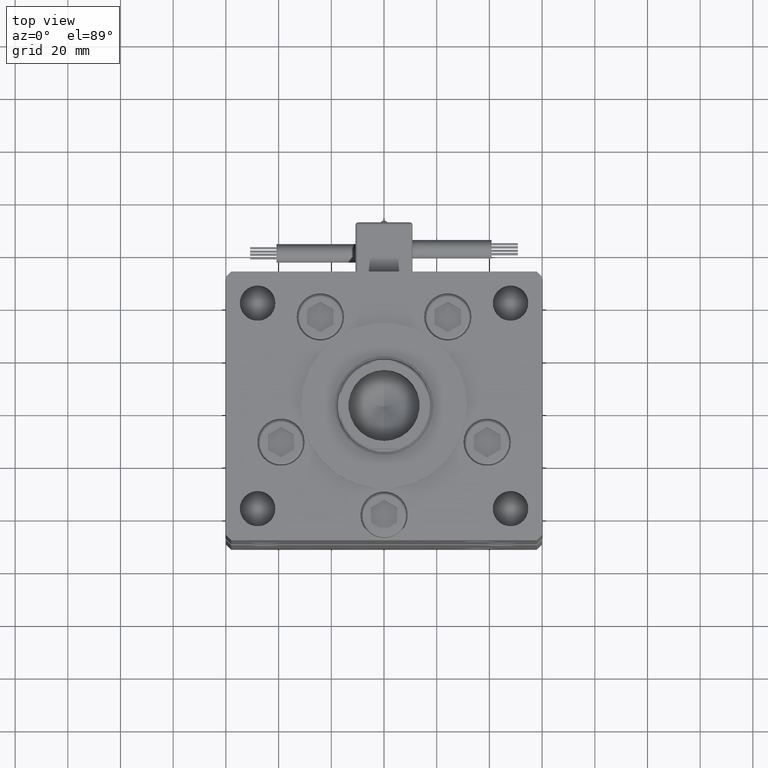
[diagram: clean part render]
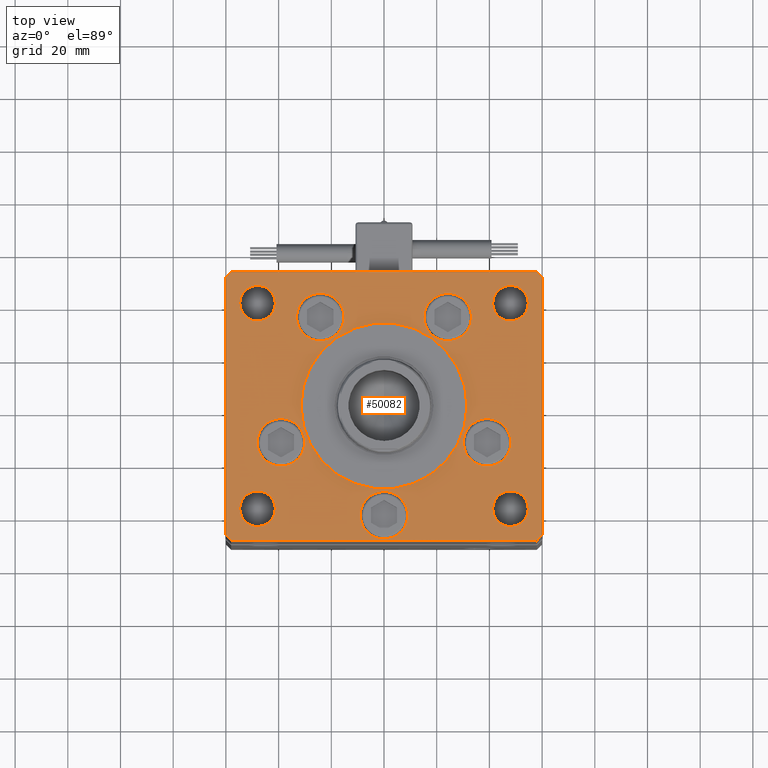
[diagram: same view with one face highlighted and labeled with its STEP entity id]
A machine part, top view. The second image highlights one B-rep face of the part: STEP entity #50082.
In plain terms, the highlighted planar face has unit normal (0, 0, 1).
Its self-contained STEP definition (entity closure, byte-faithful):
#298 = CARTESIAN_POINT ( 'NONE',  ( -48.00000000000000000, -39.00000000000001421, 0.000000000000000000 ) ) ;
#358 = AXIS2_PLACEMENT_3D ( 'NONE', #5290, #22786, #6131 ) ;
#632 = CARTESIAN_POINT ( 'NONE',  ( 15.19288941894913236, 33.71874999999998579, 0.000000000000000000 ) ) ;
#867 = DIRECTION ( 'NONE',  ( -0.7071067811865536790, -0.7071067811865414665, 0.000000000000000000 ) ) ;
#988 = DIRECTION ( 'NONE',  ( 0.000000000000000000, 0.000000000000000000, 1.000000000000000000 ) ) ;
#1074 = DIRECTION ( 'NONE',  ( 0.000000000000000000, 0.000000000000000000, 1.000000000000000000 ) ) ;
#1364 = EDGE_LOOP ( 'NONE', ( #47958, #20292 ) ) ;
#1661 = ORIENTED_EDGE ( 'NONE', *, *, #42783, .T. ) ;
#1677 = EDGE_CURVE ( 'NONE', #51264, #43285, #29739, .T. ) ;
#1870 = CIRCLE ( 'NONE', #23513, 9.000000000000001776 ) ;
#2016 = CIRCLE ( 'NONE', #38930, 6.749999999999999112 ) ;
#2754 = CARTESIAN_POINT ( 'NONE',  ( 54.75000000000000000, -39.00000000000001421, 0.000000000000000000 ) ) ;
#2838 = FACE_BOUND ( 'NONE', #42400, .T. ) ;
#3208 = DIRECTION ( 'NONE',  ( 0.000000000000000000, 0.000000000000000000, 1.000000000000000000 ) ) ;
#3339 = AXIS2_PLACEMENT_3D ( 'NONE', #13403, #44150, #47530 ) ;
#3561 = EDGE_CURVE ( 'NONE', #43285, #51264, #43327, .T. ) ;
#3714 = DIRECTION ( 'NONE',  ( 0.000000000000000000, -1.000000000000000000, 0.000000000000000000 ) ) ;
#3945 = CARTESIAN_POINT ( 'NONE',  ( 9.000000000000000000, -41.50000000000000000, 0.000000000000000000 ) ) ;
#4112 = EDGE_LOOP ( 'NONE', ( #52009, #42336 ) ) ;
#4262 = EDGE_CURVE ( 'NONE', #38681, #41301, #17212, .T. ) ;
#4327 = EDGE_CURVE ( 'NONE', #17587, #23385, #1870, .T. ) ;
#4692 = DIRECTION ( 'NONE',  ( 1.000000000000000000, 0.000000000000000000, 0.000000000000000000 ) ) ;
#5215 = DIRECTION ( 'NONE',  ( 1.000000000000000000, 0.000000000000000000, 0.000000000000000000 ) ) ;
#5290 = CARTESIAN_POINT ( 'NONE',  ( 39.12657522565563539, -13.83333333333332860, 0.000000000000000000 ) ) ;
#5444 = CARTESIAN_POINT ( 'NONE',  ( 58.00000000000001421, -50.99999999999992184, 0.000000000000000000 ) ) ;
#5619 = AXIS2_PLACEMENT_3D ( 'NONE', #7809, #28425, #11765 ) ;
#5670 = EDGE_LOOP ( 'NONE', ( #38114, #21242 ) ) ;
#5947 = VERTEX_POINT ( 'NONE', #26057 ) ;
#6131 = DIRECTION ( 'NONE',  ( 1.000000000000000000, 0.000000000000000000, 0.000000000000000000 ) ) ;
#6199 = CIRCLE ( 'NONE', #17877, 6.749999999999999112 ) ;
#6205 = VERTEX_POINT ( 'NONE', #46576 ) ;
#6497 = VECTOR ( 'NONE', #867, 1000.000000000000000 ) ;
#7029 = ORIENTED_EDGE ( 'NONE', *, *, #7975, .T. ) ;
#7809 = CARTESIAN_POINT ( 'NONE',  ( 0.000000000000000000, -6.938893903907228378E-15, 0.000000000000000000 ) ) ;
#7826 = ORIENTED_EDGE ( 'NONE', *, *, #10342, .T. ) ;
#7975 = EDGE_CURVE ( 'NONE', #46462, #23712, #41577, .T. ) ;
#8130 = CARTESIAN_POINT ( 'NONE',  ( -30.12657522565563539, -13.83333333333332860, 0.000000000000000000 ) ) ;
#8158 = CARTESIAN_POINT ( 'NONE',  ( 0.000000000000000000, -41.50000000000000000, 0.000000000000000000 ) ) ;
#8201 = CARTESIAN_POINT ( 'NONE',  ( 58.00000000000001421, -50.99999999999992184, 0.000000000000000000 ) ) ;
#8266 = DIRECTION ( 'NONE',  ( 1.000000000000000000, 0.000000000000000000, 0.000000000000000000 ) ) ;
#8301 = CARTESIAN_POINT ( 'NONE',  ( 60.00000000000001421, 49.00000000000002842, 0.000000000000000000 ) ) ;
#8492 = ORIENTED_EDGE ( 'NONE', *, *, #49474, .F. ) ;
#8767 = DIRECTION ( 'NONE',  ( 0.000000000000000000, 0.000000000000000000, 1.000000000000000000 ) ) ;
#9000 = DIRECTION ( 'NONE',  ( 0.000000000000000000, 0.000000000000000000, 1.000000000000000000 ) ) ;
#9729 = DIRECTION ( 'NONE',  ( 1.000000000000000000, 0.000000000000000000, 0.000000000000000000 ) ) ;
#10250 = AXIS2_PLACEMENT_3D ( 'NONE', #12493, #46895, #25474 ) ;
#10342 = EDGE_CURVE ( 'NONE', #23712, #46462, #39810, .T. ) ;
#10625 = VERTEX_POINT ( 'NONE', #24575 ) ;
#10900 = EDGE_CURVE ( 'NONE', #10625, #35849, #39813, .T. ) ;
#10947 = CARTESIAN_POINT ( 'NONE',  ( 41.25000000000000000, -39.00000000000001421, 0.000000000000000000 ) ) ;
#11283 = ORIENTED_EDGE ( 'NONE', *, *, #21028, .T. ) ;
#11304 = CARTESIAN_POINT ( 'NONE',  ( -48.00000000000000000, -39.00000000000001421, 0.000000000000000000 ) ) ;
#11307 = FACE_BOUND ( 'NONE', #4112, .T. ) ;
#11461 = EDGE_CURVE ( 'NONE', #41301, #38681, #32642, .T. ) ;
#11765 = DIRECTION ( 'NONE',  ( 1.000000000000000000, 0.000000000000000000, 0.000000000000000000 ) ) ;
#11815 = ORIENTED_EDGE ( 'NONE', *, *, #26825, .T. ) ;
#12016 = ORIENTED_EDGE ( 'NONE', *, *, #26323, .F. ) ;
#12028 = CARTESIAN_POINT ( 'NONE',  ( -54.75000000000000000, -39.00000000000001421, 0.000000000000000000 ) ) ;
#12209 = CIRCLE ( 'NONE', #17599, 6.749999999999999112 ) ;
#12369 = EDGE_CURVE ( 'NONE', #48537, #38527, #42561, .T. ) ;
#12449 = LINE ( 'NONE', #30216, #43091 ) ;
#12493 = CARTESIAN_POINT ( 'NONE',  ( 0.000000000000000000, -41.50000000000000000, 0.000000000000000000 ) ) ;
#12610 = LINE ( 'NONE', #29551, #42685 ) ;
#12772 = AXIS2_PLACEMENT_3D ( 'NONE', #54578, #50616, #28932 ) ;
#13403 = CARTESIAN_POINT ( 'NONE',  ( 24.19288941894913592, 33.71874999999998579, 0.000000000000000000 ) ) ;
#14050 = DIRECTION ( 'NONE',  ( 1.000000000000000000, 0.000000000000000000, 0.000000000000000000 ) ) ;
#14929 = EDGE_CURVE ( 'NONE', #23040, #31239, #21945, .T. ) ;
#14950 = ORIENTED_EDGE ( 'NONE', *, *, #20130, .T. ) ;
#15251 = CARTESIAN_POINT ( 'NONE',  ( 0.000000000000000000, 0.000000000000000000, 0.000000000000000000 ) ) ;
#15722 = DIRECTION ( 'NONE',  ( -0.000000000000000000, -0.000000000000000000, -1.000000000000000000 ) ) ;
#15800 = EDGE_LOOP ( 'NONE', ( #45470, #14950 ) ) ;
#15898 = AXIS2_PLACEMENT_3D ( 'NONE', #298, #8767, #29385 ) ;
#15930 = CARTESIAN_POINT ( 'NONE',  ( 48.00000000000000000, -39.00000000000001421, 0.000000000000000000 ) ) ;
#16361 = ORIENTED_EDGE ( 'NONE', *, *, #33834, .F. ) ;
#16764 = DIRECTION ( 'NONE',  ( -0.7071067811865536790, 0.7071067811865414665, 0.000000000000000000 ) ) ;
#16793 = EDGE_LOOP ( 'NONE', ( #51634, #35943 ) ) ;
#17212 = CIRCLE ( 'NONE', #39723, 31.50000000000000000 ) ;
#17320 = LINE ( 'NONE', #8301, #30300 ) ;
#17377 = EDGE_CURVE ( 'NONE', #33630, #42777, #38652, .T. ) ;
#17473 = CIRCLE ( 'NONE', #358, 9.000000000000001776 ) ;
#17587 = VERTEX_POINT ( 'NONE', #8130 ) ;
#17599 = AXIS2_PLACEMENT_3D ( 'NONE', #39437, #1074, #27590 ) ;
#17843 = EDGE_LOOP ( 'NONE', ( #11815, #47585, #30281, #11283, #52940, #26140, #42461, #1661 ) ) ;
#17877 = AXIS2_PLACEMENT_3D ( 'NONE', #11304, #36701, #54984 ) ;
#18117 = AXIS2_PLACEMENT_3D ( 'NONE', #48351, #988, #9729 ) ;
#18622 = DIRECTION ( 'NONE',  ( -0.000000000000000000, -0.000000000000000000, -1.000000000000000000 ) ) ;
#19219 = FACE_BOUND ( 'NONE', #16793, .T. ) ;
#19321 = EDGE_CURVE ( 'NONE', #5947, #44634, #17320, .T. ) ;
#19342 = DIRECTION ( 'NONE',  ( -0.000000000000000000, -0.000000000000000000, -1.000000000000000000 ) ) ;
#19827 = DIRECTION ( 'NONE',  ( 1.000000000000000000, 0.000000000000000000, 0.000000000000000000 ) ) ;
#20130 = EDGE_CURVE ( 'NONE', #31239, #23040, #2016, .T. ) ;
#20292 = ORIENTED_EDGE ( 'NONE', *, *, #25842, .F. ) ;
#20683 = CARTESIAN_POINT ( 'NONE',  ( -24.19288941894913592, 33.71874999999998579, 0.000000000000000000 ) ) ;
#20732 = VERTEX_POINT ( 'NONE', #3945 ) ;
#20762 = CARTESIAN_POINT ( 'NONE',  ( -39.12657522565563539, -13.83333333333332860, 0.000000000000000000 ) ) ;
#21028 = EDGE_CURVE ( 'NONE', #42777, #5947, #44118, .T. ) ;
#21242 = ORIENTED_EDGE ( 'NONE', *, *, #1677, .F. ) ;
#21807 = DIRECTION ( 'NONE',  ( 1.000000000000000000, 9.570888143320313916E-16, 0.000000000000000000 ) ) ;
#21903 = DIRECTION ( 'NONE',  ( 0.000000000000000000, 0.000000000000000000, 1.000000000000000000 ) ) ;
#21945 = CIRCLE ( 'NONE', #36392, 6.749999999999999112 ) ;
#21962 = DIRECTION ( 'NONE',  ( 0.000000000000000000, 0.000000000000000000, 1.000000000000000000 ) ) ;
#22436 = VERTEX_POINT ( 'NONE', #38478 ) ;
#22786 = DIRECTION ( 'NONE',  ( 0.000000000000000000, 0.000000000000000000, 1.000000000000000000 ) ) ;
#23040 = VERTEX_POINT ( 'NONE', #2754 ) ;
#23385 = VERTEX_POINT ( 'NONE', #55666 ) ;
#23513 = AXIS2_PLACEMENT_3D ( 'NONE', #20762, #45869, #50075 ) ;
#23712 = VERTEX_POINT ( 'NONE', #39546 ) ;
#23898 = EDGE_CURVE ( 'NONE', #23385, #17587, #35576, .T. ) ;
#24575 = CARTESIAN_POINT ( 'NONE',  ( -57.99999999999998579, 50.99999999999997868, 0.000000000000000000 ) ) ;
#24607 = CARTESIAN_POINT ( 'NONE',  ( 60.00000000000001421, -48.99999999999992895, 0.000000000000000000 ) ) ;
#25474 = DIRECTION ( 'NONE',  ( 1.000000000000000000, 0.000000000000000000, 0.000000000000000000 ) ) ;
#25496 = AXIS2_PLACEMENT_3D ( 'NONE', #47619, #9000, #14050 ) ;
#25842 = EDGE_CURVE ( 'NONE', #31229, #20732, #34557, .T. ) ;
#25917 = DIRECTION ( 'NONE',  ( 1.000000000000000000, 0.000000000000000000, 0.000000000000000000 ) ) ;
#25931 = VERTEX_POINT ( 'NONE', #632 ) ;
#26057 = CARTESIAN_POINT ( 'NONE',  ( 60.00000000000001421, 49.00000000000002842, 0.000000000000000000 ) ) ;
#26140 = ORIENTED_EDGE ( 'NONE', *, *, #40897, .T. ) ;
#26323 = EDGE_CURVE ( 'NONE', #38527, #48537, #17473, .T. ) ;
#26384 = DIRECTION ( 'NONE',  ( 0.000000000000000000, 0.000000000000000000, 1.000000000000000000 ) ) ;
#26415 = VECTOR ( 'NONE', #27214, 1000.000000000000000 ) ;
#26825 = EDGE_CURVE ( 'NONE', #38879, #32074, #12610, .T. ) ;
#26856 = VERTEX_POINT ( 'NONE', #55466 ) ;
#27214 = DIRECTION ( 'NONE',  ( 0.000000000000000000, 1.000000000000000000, 0.000000000000000000 ) ) ;
#27590 = DIRECTION ( 'NONE',  ( 1.000000000000000000, 0.000000000000000000, 0.000000000000000000 ) ) ;
#27965 = FACE_BOUND ( 'NONE', #38149, .T. ) ;
#28197 = CARTESIAN_POINT ( 'NONE',  ( 48.00000000000000000, -39.00000000000001421, 0.000000000000000000 ) ) ;
#28425 = DIRECTION ( 'NONE',  ( 0.000000000000000000, 0.000000000000000000, 1.000000000000000000 ) ) ;
#28782 = FACE_OUTER_BOUND ( 'NONE', #17843, .T. ) ;
#28932 = DIRECTION ( 'NONE',  ( -1.000000000000000000, 0.000000000000000000, 0.000000000000000000 ) ) ;
#29385 = DIRECTION ( 'NONE',  ( 1.000000000000000000, 0.000000000000000000, 0.000000000000000000 ) ) ;
#29551 = CARTESIAN_POINT ( 'NONE',  ( -60.00000000000000000, -49.00000000000004263, 0.000000000000000000 ) ) ;
#29739 = CIRCLE ( 'NONE', #34245, 9.000000000000000000 ) ;
#30088 = EDGE_LOOP ( 'NONE', ( #8492, #52460 ) ) ;
#30190 = EDGE_CURVE ( 'NONE', #22436, #26856, #12209, .T. ) ;
#30216 = CARTESIAN_POINT ( 'NONE',  ( -60.00000000000000000, 49.00000000000000000, 0.000000000000000000 ) ) ;
#30281 = ORIENTED_EDGE ( 'NONE', *, *, #17377, .T. ) ;
#30300 = VECTOR ( 'NONE', #16764, 1000.000000000000000 ) ;
#30414 = ORIENTED_EDGE ( 'NONE', *, *, #38336, .F. ) ;
#30541 = LINE ( 'NONE', #35065, #34051 ) ;
#30696 = CARTESIAN_POINT ( 'NONE',  ( -39.12657522565563539, -13.83333333333332860, 0.000000000000000000 ) ) ;
#30900 = CIRCLE ( 'NONE', #25496, 6.749999999999999112 ) ;
#31143 = EDGE_CURVE ( 'NONE', #20732, #31229, #48256, .T. ) ;
#31229 = VERTEX_POINT ( 'NONE', #46174 ) ;
#31239 = VERTEX_POINT ( 'NONE', #10947 ) ;
#31964 = AXIS2_PLACEMENT_3D ( 'NONE', #30696, #51262, #19827 ) ;
#32074 = VERTEX_POINT ( 'NONE', #43334 ) ;
#32144 = VERTEX_POINT ( 'NONE', #36011 ) ;
#32200 = FACE_BOUND ( 'NONE', #5670, .T. ) ;
#32642 = CIRCLE ( 'NONE', #5619, 31.50000000000000000 ) ;
#32949 = DIRECTION ( 'NONE',  ( -1.000000000000000000, 0.000000000000000000, 0.000000000000000000 ) ) ;
#33630 = VERTEX_POINT ( 'NONE', #5444 ) ;
#33834 = EDGE_CURVE ( 'NONE', #6205, #36864, #45657, .T. ) ;
#34051 = VECTOR ( 'NONE', #39858, 1000.000000000000000 ) ;
#34245 = AXIS2_PLACEMENT_3D ( 'NONE', #20683, #3208, #8266 ) ;
#34327 = CARTESIAN_POINT ( 'NONE',  ( 39.12657522565563539, -13.83333333333332860, 0.000000000000000000 ) ) ;
#34505 = LINE ( 'NONE', #51678, #38559 ) ;
#34557 = CIRCLE ( 'NONE', #10250, 9.000000000000000000 ) ;
#34587 = EDGE_CURVE ( 'NONE', #25931, #32144, #50175, .T. ) ;
#34755 = AXIS2_PLACEMENT_3D ( 'NONE', #8158, #21962, #25917 ) ;
#34889 = CARTESIAN_POINT ( 'NONE',  ( 58.00000000000000000, 51.00000000000000711, 0.000000000000000000 ) ) ;
#34994 = DIRECTION ( 'NONE',  ( 1.000000000000000000, 0.000000000000000000, 0.000000000000000000 ) ) ;
#35016 = CARTESIAN_POINT ( 'NONE',  ( -57.99999999999998579, 50.99999999999997868, 0.000000000000000000 ) ) ;
#35065 = CARTESIAN_POINT ( 'NONE',  ( 58.00000000000000000, 51.00000000000000711, 0.000000000000000000 ) ) ;
#35576 = CIRCLE ( 'NONE', #31964, 9.000000000000001776 ) ;
#35829 = DIRECTION ( 'NONE',  ( -1.000000000000000000, 0.000000000000000000, 0.000000000000000000 ) ) ;
#35849 = VERTEX_POINT ( 'NONE', #41089 ) ;
#35943 = ORIENTED_EDGE ( 'NONE', *, *, #23898, .F. ) ;
#36011 = CARTESIAN_POINT ( 'NONE',  ( 33.19288941894913592, 33.71874999999998579, 0.000000000000000000 ) ) ;
#36270 = AXIS2_PLACEMENT_3D ( 'NONE', #34327, #21903, #4692 ) ;
#36392 = AXIS2_PLACEMENT_3D ( 'NONE', #28197, #18622, #35829 ) ;
#36430 = PLANE ( 'NONE',  #47986 ) ;
#36555 = DIRECTION ( 'NONE',  ( -1.000000000000000000, 0.000000000000000000, 0.000000000000000000 ) ) ;
#36701 = DIRECTION ( 'NONE',  ( 0.000000000000000000, 0.000000000000000000, 1.000000000000000000 ) ) ;
#36705 = FACE_BOUND ( 'NONE', #30088, .T. ) ;
#36864 = VERTEX_POINT ( 'NONE', #12028 ) ;
#37254 = FACE_BOUND ( 'NONE', #40418, .T. ) ;
#37262 = EDGE_CURVE ( 'NONE', #32074, #33630, #34505, .T. ) ;
#38114 = ORIENTED_EDGE ( 'NONE', *, *, #3561, .F. ) ;
#38149 = EDGE_LOOP ( 'NONE', ( #16361, #30414 ) ) ;
#38289 = DIRECTION ( 'NONE',  ( 0.7071067811865474617, -0.7071067811865474617, 0.000000000000000000 ) ) ;
#38336 = EDGE_CURVE ( 'NONE', #36864, #6205, #6199, .T. ) ;
#38478 = CARTESIAN_POINT ( 'NONE',  ( 41.25000000000000000, 39.00000000000000000, 0.000000000000000000 ) ) ;
#38527 = VERTEX_POINT ( 'NONE', #52983 ) ;
#38559 = VECTOR ( 'NONE', #21807, 1000.000000000000000 ) ;
#38652 = LINE ( 'NONE', #8201, #51722 ) ;
#38681 = VERTEX_POINT ( 'NONE', #53810 ) ;
#38879 = VERTEX_POINT ( 'NONE', #49777 ) ;
#38930 = AXIS2_PLACEMENT_3D ( 'NONE', #15930, #19342, #36555 ) ;
#39010 = ORIENTED_EDGE ( 'NONE', *, *, #12369, .F. ) ;
#39437 = CARTESIAN_POINT ( 'NONE',  ( 48.00000000000000000, 39.00000000000000000, 0.000000000000000000 ) ) ;
#39546 = CARTESIAN_POINT ( 'NONE',  ( -54.75000000000000000, 39.00000000000000711, 0.000000000000000000 ) ) ;
#39723 = AXIS2_PLACEMENT_3D ( 'NONE', #40828, #40282, #34994 ) ;
#39810 = CIRCLE ( 'NONE', #12772, 6.749999999999999112 ) ;
#39813 = LINE ( 'NONE', #35016, #6497 ) ;
#39858 = DIRECTION ( 'NONE',  ( -1.000000000000000000, -2.392722035830078972E-16, 0.000000000000000000 ) ) ;
#40194 = CARTESIAN_POINT ( 'NONE',  ( 60.00000000000001421, -48.99999999999992895, 0.000000000000000000 ) ) ;
#40282 = DIRECTION ( 'NONE',  ( 0.000000000000000000, 0.000000000000000000, 1.000000000000000000 ) ) ;
#40418 = EDGE_LOOP ( 'NONE', ( #7029, #7826 ) ) ;
#40664 = AXIS2_PLACEMENT_3D ( 'NONE', #54357, #15722, #32949 ) ;
#40828 = CARTESIAN_POINT ( 'NONE',  ( 0.000000000000000000, -6.938893903907228378E-15, 0.000000000000000000 ) ) ;
#40897 = EDGE_CURVE ( 'NONE', #44634, #10625, #30541, .T. ) ;
#41089 = CARTESIAN_POINT ( 'NONE',  ( -60.00000000000000000, 49.00000000000000000, 0.000000000000000000 ) ) ;
#41301 = VERTEX_POINT ( 'NONE', #49545 ) ;
#41577 = CIRCLE ( 'NONE', #40664, 6.749999999999999112 ) ;
#42336 = ORIENTED_EDGE ( 'NONE', *, *, #34587, .F. ) ;
#42400 = EDGE_LOOP ( 'NONE', ( #39010, #12016 ) ) ;
#42461 = ORIENTED_EDGE ( 'NONE', *, *, #10900, .T. ) ;
#42561 = CIRCLE ( 'NONE', #36270, 9.000000000000001776 ) ;
#42611 = DIRECTION ( 'NONE',  ( 0.7071067811865474617, 0.7071067811865474617, 0.000000000000000000 ) ) ;
#42685 = VECTOR ( 'NONE', #38289, 1000.000000000000114 ) ;
#42777 = VERTEX_POINT ( 'NONE', #24607 ) ;
#42783 = EDGE_CURVE ( 'NONE', #35849, #38879, #12449, .T. ) ;
#43091 = VECTOR ( 'NONE', #3714, 1000.000000000000000 ) ;
#43285 = VERTEX_POINT ( 'NONE', #53520 ) ;
#43327 = CIRCLE ( 'NONE', #47795, 9.000000000000000000 ) ;
#43334 = CARTESIAN_POINT ( 'NONE',  ( -58.00000000000000711, -51.00000000000002842, 0.000000000000000000 ) ) ;
#43357 = CARTESIAN_POINT ( 'NONE',  ( -33.19288941894913592, 33.71874999999998579, 0.000000000000000000 ) ) ;
#43550 = ORIENTED_EDGE ( 'NONE', *, *, #4262, .F. ) ;
#44097 = ORIENTED_EDGE ( 'NONE', *, *, #11461, .F. ) ;
#44118 = LINE ( 'NONE', #40194, #26415 ) ;
#44150 = DIRECTION ( 'NONE',  ( 0.000000000000000000, 0.000000000000000000, 1.000000000000000000 ) ) ;
#44634 = VERTEX_POINT ( 'NONE', #34889 ) ;
#45470 = ORIENTED_EDGE ( 'NONE', *, *, #14929, .T. ) ;
#45657 = CIRCLE ( 'NONE', #15898, 6.749999999999999112 ) ;
#45869 = DIRECTION ( 'NONE',  ( 0.000000000000000000, 0.000000000000000000, 1.000000000000000000 ) ) ;
#46174 = CARTESIAN_POINT ( 'NONE',  ( -9.000000000000000000, -41.50000000000000000, 0.000000000000000000 ) ) ;
#46462 = VERTEX_POINT ( 'NONE', #49305 ) ;
#46576 = CARTESIAN_POINT ( 'NONE',  ( -41.25000000000000000, -39.00000000000001421, 0.000000000000000000 ) ) ;
#46895 = DIRECTION ( 'NONE',  ( 0.000000000000000000, 0.000000000000000000, 1.000000000000000000 ) ) ;
#47530 = DIRECTION ( 'NONE',  ( 1.000000000000000000, 0.000000000000000000, 0.000000000000000000 ) ) ;
#47585 = ORIENTED_EDGE ( 'NONE', *, *, #37262, .T. ) ;
#47619 = CARTESIAN_POINT ( 'NONE',  ( 48.00000000000000000, 39.00000000000000000, 0.000000000000000000 ) ) ;
#47795 = AXIS2_PLACEMENT_3D ( 'NONE', #47797, #26384, #5215 ) ;
#47797 = CARTESIAN_POINT ( 'NONE',  ( -24.19288941894913592, 33.71874999999998579, 0.000000000000000000 ) ) ;
#47958 = ORIENTED_EDGE ( 'NONE', *, *, #31143, .F. ) ;
#47986 = AXIS2_PLACEMENT_3D ( 'NONE', #15251, #53614, #54436 ) ;
#48256 = CIRCLE ( 'NONE', #34755, 9.000000000000000000 ) ;
#48351 = CARTESIAN_POINT ( 'NONE',  ( 24.19288941894913592, 33.71874999999998579, 0.000000000000000000 ) ) ;
#48537 = VERTEX_POINT ( 'NONE', #49528 ) ;
#48720 = EDGE_CURVE ( 'NONE', #32144, #25931, #55018, .T. ) ;
#49110 = FACE_BOUND ( 'NONE', #1364, .T. ) ;
#49305 = CARTESIAN_POINT ( 'NONE',  ( -41.25000000000000000, 39.00000000000000711, 0.000000000000000000 ) ) ;
#49474 = EDGE_CURVE ( 'NONE', #26856, #22436, #30900, .T. ) ;
#49528 = CARTESIAN_POINT ( 'NONE',  ( 48.12657522565563539, -13.83333333333332860, 0.000000000000000000 ) ) ;
#49545 = CARTESIAN_POINT ( 'NONE',  ( -31.50000000000000000, -6.938893903907228378E-15, 0.000000000000000000 ) ) ;
#49777 = CARTESIAN_POINT ( 'NONE',  ( -60.00000000000000000, -49.00000000000004263, 0.000000000000000000 ) ) ;
#50075 = DIRECTION ( 'NONE',  ( 1.000000000000000000, 0.000000000000000000, 0.000000000000000000 ) ) ;
#50082 = ADVANCED_FACE ( 'NONE', ( #53340, #32200, #11307, #2838, #49110, #19219, #37254, #36705, #27965, #28782, #53881 ), #36430, .T. ) ;
#50175 = CIRCLE ( 'NONE', #3339, 9.000000000000001776 ) ;
#50616 = DIRECTION ( 'NONE',  ( -0.000000000000000000, -0.000000000000000000, -1.000000000000000000 ) ) ;
#51262 = DIRECTION ( 'NONE',  ( 0.000000000000000000, 0.000000000000000000, 1.000000000000000000 ) ) ;
#51264 = VERTEX_POINT ( 'NONE', #43357 ) ;
#51634 = ORIENTED_EDGE ( 'NONE', *, *, #4327, .F. ) ;
#51678 = CARTESIAN_POINT ( 'NONE',  ( -58.00000000000000711, -51.00000000000002842, 0.000000000000000000 ) ) ;
#51722 = VECTOR ( 'NONE', #42611, 1000.000000000000114 ) ;
#52009 = ORIENTED_EDGE ( 'NONE', *, *, #48720, .F. ) ;
#52034 = EDGE_LOOP ( 'NONE', ( #44097, #43550 ) ) ;
#52460 = ORIENTED_EDGE ( 'NONE', *, *, #30190, .F. ) ;
#52940 = ORIENTED_EDGE ( 'NONE', *, *, #19321, .T. ) ;
#52983 = CARTESIAN_POINT ( 'NONE',  ( 30.12657522565563539, -13.83333333333332682, 0.000000000000000000 ) ) ;
#53340 = FACE_BOUND ( 'NONE', #52034, .T. ) ;
#53520 = CARTESIAN_POINT ( 'NONE',  ( -15.19288941894913592, 33.71874999999998579, 0.000000000000000000 ) ) ;
#53614 = DIRECTION ( 'NONE',  ( -0.000000000000000000, 0.000000000000000000, 1.000000000000000000 ) ) ;
#53810 = CARTESIAN_POINT ( 'NONE',  ( 31.50000000000000000, -3.081256486593065689E-15, 0.000000000000000000 ) ) ;
#53881 = FACE_BOUND ( 'NONE', #15800, .T. ) ;
#54357 = CARTESIAN_POINT ( 'NONE',  ( -48.00000000000000000, 39.00000000000000711, 0.000000000000000000 ) ) ;
#54436 = DIRECTION ( 'NONE',  ( 1.000000000000000000, 0.000000000000000000, 0.000000000000000000 ) ) ;
#54578 = CARTESIAN_POINT ( 'NONE',  ( -48.00000000000000000, 39.00000000000000711, 0.000000000000000000 ) ) ;
#54984 = DIRECTION ( 'NONE',  ( 1.000000000000000000, 0.000000000000000000, 0.000000000000000000 ) ) ;
#55018 = CIRCLE ( 'NONE', #18117, 9.000000000000001776 ) ;
#55466 = CARTESIAN_POINT ( 'NONE',  ( 54.75000000000000000, 39.00000000000000000, 0.000000000000000000 ) ) ;
#55666 = CARTESIAN_POINT ( 'NONE',  ( -48.12657522565563539, -13.83333333333332682, 0.000000000000000000 ) ) ;